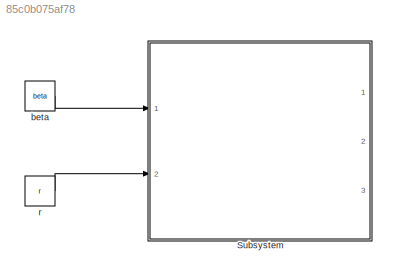
MODEL slx_85c0b075af78
KIND model
CONFIG AbsTol = auto
CONFIG EnableMultiTasking = off
CONFIG FixedStep = auto
CONFIG MaxStep = auto
CONFIG MinStep = auto
CONFIG RelTol = 1e-3
CONFIG SampleTimeConstraint = Unconstrained
CONFIG SolverName = VariableStepAuto
CONFIG StartTime = 0.0
CONFIG StopTime = 1000
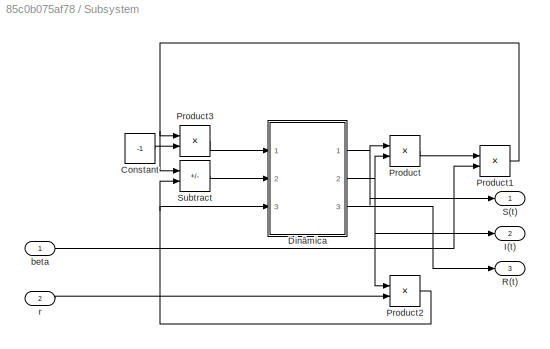
BLOCK [SubSystem] Subsystem
  Ports = [2, 3]
  RequestExecContextInheritance = off
BLOCK [Constant] Subsystem/Constant
  Value = -1
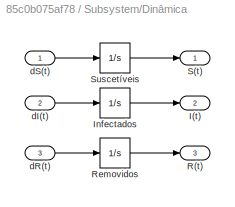
BLOCK [SubSystem] Subsystem/Dinâmica
  Ports = [3, 3]
  RequestExecContextInheritance = off
BLOCK [Outport] Subsystem/Dinâmica/I(t)
  Port = 2
  VectorParamsAs1DForOutWhenUnconnected = off
BLOCK [Integrator] Subsystem/Dinâmica/Infectados
  InitialCondition = i0
  Ports = [1, 1]
BLOCK [Outport] Subsystem/Dinâmica/R(t)
  Port = 3
  VectorParamsAs1DForOutWhenUnconnected = off
BLOCK [Integrator] Subsystem/Dinâmica/Removidos
  InitialCondition = r0
  Ports = [1, 1]
BLOCK [Outport] Subsystem/Dinâmica/S(t)
  VectorParamsAs1DForOutWhenUnconnected = off
BLOCK [Integrator] Subsystem/Dinâmica/Suscetíveis
  InitialCondition = s0
  Ports = [1, 1]
BLOCK [Inport] Subsystem/Dinâmica/dI(t)
  Port = 2
BLOCK [Inport] Subsystem/Dinâmica/dR(t)
  Port = 3
BLOCK [Inport] Subsystem/Dinâmica/dS(t)
BLOCK [Outport] Subsystem/I(t)
  Port = 2
  SampleTime = 1.001
  VectorParamsAs1DForOutWhenUnconnected = off
BLOCK [Product] Subsystem/Product
  Ports = [2, 1]
BLOCK [Product] Subsystem/Product1
  Ports = [2, 1]
BLOCK [Product] Subsystem/Product2
  Ports = [2, 1]
BLOCK [Product] Subsystem/Product3
  Ports = [2, 1]
BLOCK [Outport] Subsystem/R(t)
  Port = 3
  SampleTime = 1.001
  VectorParamsAs1DForOutWhenUnconnected = off
BLOCK [Outport] Subsystem/S(t)
  SampleTime = 1.001
  VarSizeSig = No
  VectorParamsAs1DForOutWhenUnconnected = off
BLOCK [Sum] Subsystem/Subtract
  IconShape = rectangular
  Inputs = +-
  Ports = [2, 1]
BLOCK [Inport] Subsystem/beta
BLOCK [Inport] Subsystem/r
  Port = 2
BLOCK [Constant] beta 
  Value = beta
BLOCK [Constant] r
  Value = r
LINE Subsystem/Constant:1 -> Subsystem/Product3:2
LINE Subsystem/Dinâmica/Infectados:1 -> Subsystem/Dinâmica/I(t):1
LINE Subsystem/Dinâmica/Removidos:1 -> Subsystem/Dinâmica/R(t):1
LINE Subsystem/Dinâmica/Suscetíveis:1 -> Subsystem/Dinâmica/S(t):1
LINE Subsystem/Dinâmica/dI(t):1 -> Subsystem/Dinâmica/Infectados:1
LINE Subsystem/Dinâmica/dR(t):1 -> Subsystem/Dinâmica/Removidos:1
LINE Subsystem/Dinâmica/dS(t):1 -> Subsystem/Dinâmica/Suscetíveis:1
NET Subsystem/Dinâmica:1 -> Subsystem/Product:1, Subsystem/S(t):1
NET Subsystem/Dinâmica:2 -> Subsystem/I(t):1, Subsystem/Product2:1, Subsystem/Product:2
LINE Subsystem/Dinâmica:3 -> Subsystem/R(t):1
NET Subsystem/Product1:1 -> Subsystem/Product3:1, Subsystem/Subtract:1
NET Subsystem/Product2:1 -> Subsystem/Dinâmica:3, Subsystem/Subtract:2
LINE Subsystem/Product3:1 -> Subsystem/Dinâmica:1
LINE Subsystem/Product:1 -> Subsystem/Product1:1
LINE Subsystem/Subtract:1 -> Subsystem/Dinâmica:2
LINE Subsystem/beta:1 -> Subsystem/Product1:2
LINE Subsystem/r:1 -> Subsystem/Product2:2
LINE beta :1 -> Subsystem:1
LINE r:1 -> Subsystem:2
note: NET lines group one-source signal fan-out (src -> all destinations, sorted); 1:1 wires keep LINE
